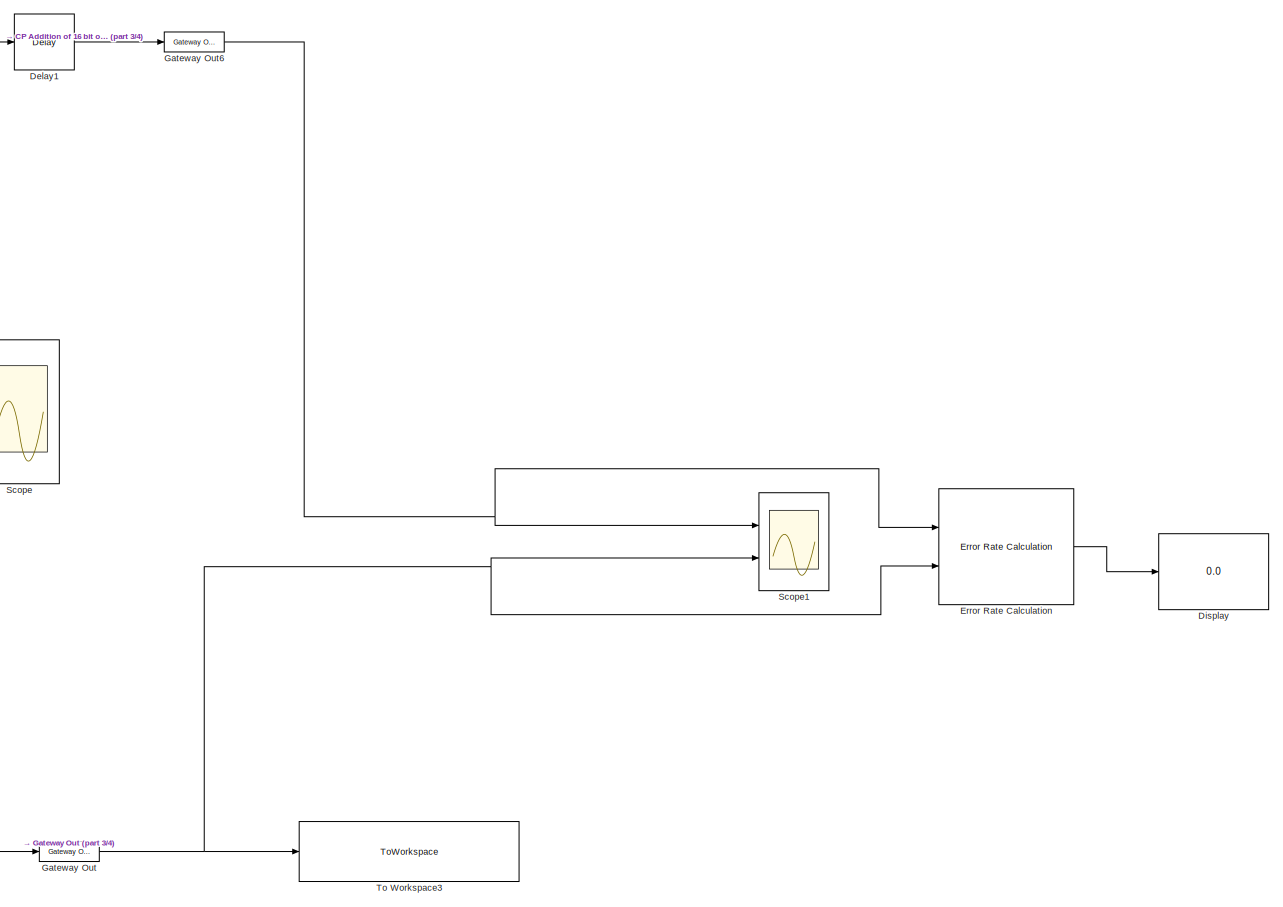
[diagram: root canvas - part 1/4, right side, full height]
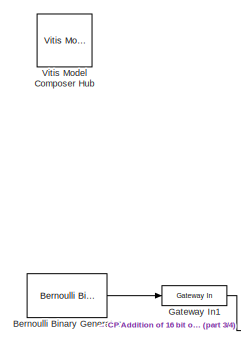
[diagram: root canvas - part 2/4, middle left region]
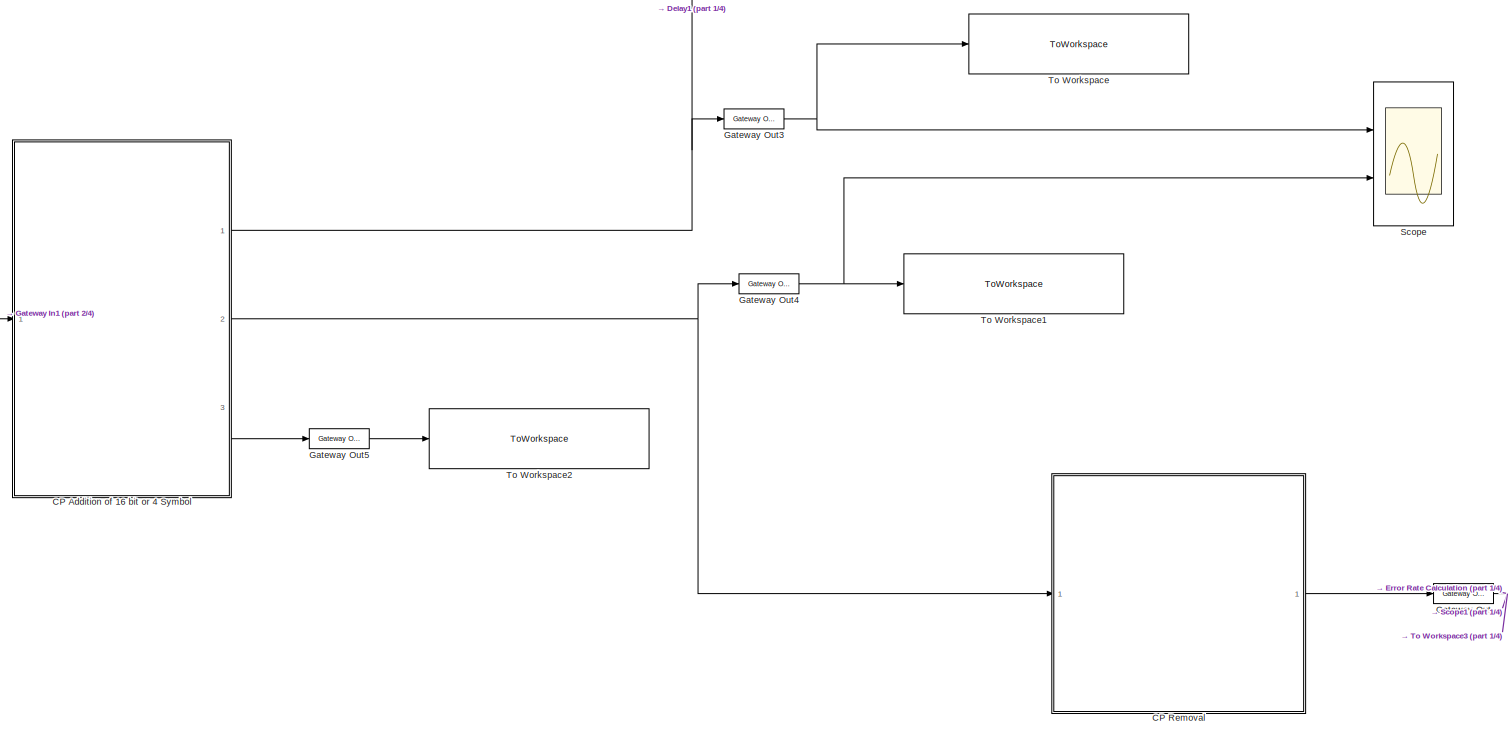
[diagram: root canvas - part 3/4, central region]
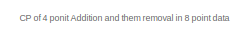
[diagram: root canvas - part 4/4, bottom center region]
MODEL slx_0018f669aeec
KIND model
CONFIG AbsTol = auto
CONFIG EnableMultiTasking = off
CONFIG FixedStep = auto
CONFIG MaxStep = auto
CONFIG MinStep = auto
CONFIG RelTol = 1e-3
CONFIG SampleTimeConstraint = Unconstrained
CONFIG SolverName = VariableStepAuto
CONFIG StartTime = 0.0
CONFIG StopTime = 5000
BLOCK [Reference] Bernoulli Binary Generator  REF=commrandsrc3/Bernoulli Binary
Generator
  Ports = [0, 1]
  SourceBlock = commrandsrc3/Bernoulli Binary\nGenerator
  SourceProductBaseCode = CM
  SourceType = Bernoulli Binary Generator
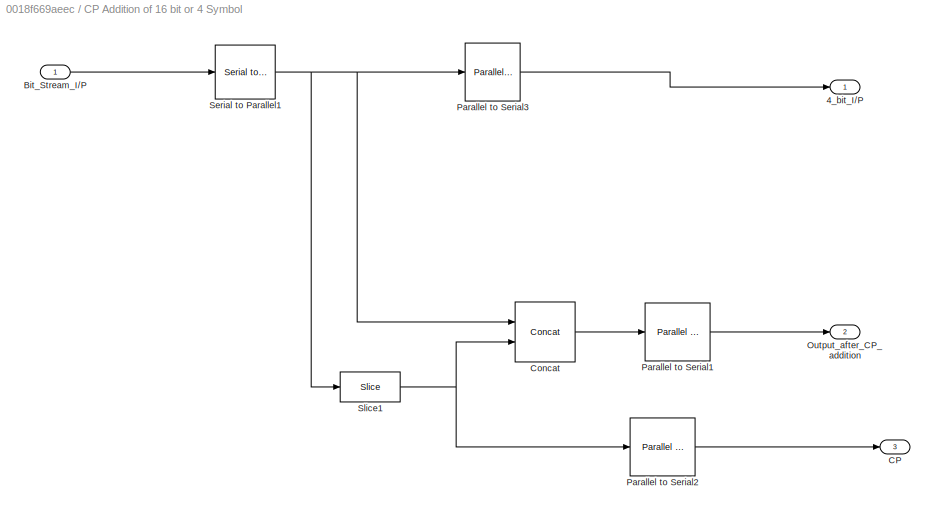
BLOCK [SubSystem] CP Addition of 16 bit or 4 Symbol
  Ports = [1, 3]
  RequestExecContextInheritance = off
BLOCK [Outport] CP Addition of 16 bit or 4 Symbol/4_bit_I//P
BLOCK [Inport] CP Addition of 16 bit or 4 Symbol/Bit_Stream_I//P
BLOCK [Outport] CP Addition of 16 bit or 4 Symbol/CP
  Port = 3
BLOCK [Reference] CP Addition of 16 bit or 4 Symbol/Concat  REF=hdlBasic/Concat
  Ports = [2, 1]
  SourceBlock = hdlBasic/Concat
  SourceType = Bus Concatenator Block
BLOCK [Outport] CP Addition of 16 bit or 4 Symbol/Output_after_CP_addition
  Port = 2
BLOCK [Reference] CP Addition of 16 bit or 4 Symbol/Parallel to Serial1  REF=hdlBasic/Parallel to Serial
  Ports = [1, 1]
  SourceBlock = hdlBasic/Parallel to Serial
  SourceType = Parallel to Serial Converter Block
BLOCK [Reference] CP Addition of 16 bit or 4 Symbol/Parallel to Serial2  REF=hdlBasic/Parallel to Serial
  Ports = [1, 1]
  SourceBlock = hdlBasic/Parallel to Serial
  SourceType = Parallel to Serial Converter Block
BLOCK [Reference] CP Addition of 16 bit or 4 Symbol/Parallel to Serial3  REF=hdlBasic/Parallel to Serial
  Ports = [1, 1]
  SourceBlock = hdlBasic/Parallel to Serial
  SourceType = Parallel to Serial Converter Block
BLOCK [Reference] CP Addition of 16 bit or 4 Symbol/Serial to Parallel1  REF=hdlBasic/Serial to Parallel
  Ports = [1, 1]
  SourceBlock = hdlBasic/Serial to Parallel
  SourceType = Serial to Parallel Converter Block
BLOCK [Reference] CP Addition of 16 bit or 4 Symbol/Slice1  REF=hdlBasic/Slice
  Ports = [1, 1]
  SourceBlock = hdlBasic/Slice
  SourceType = Bit Slice Extractor Block
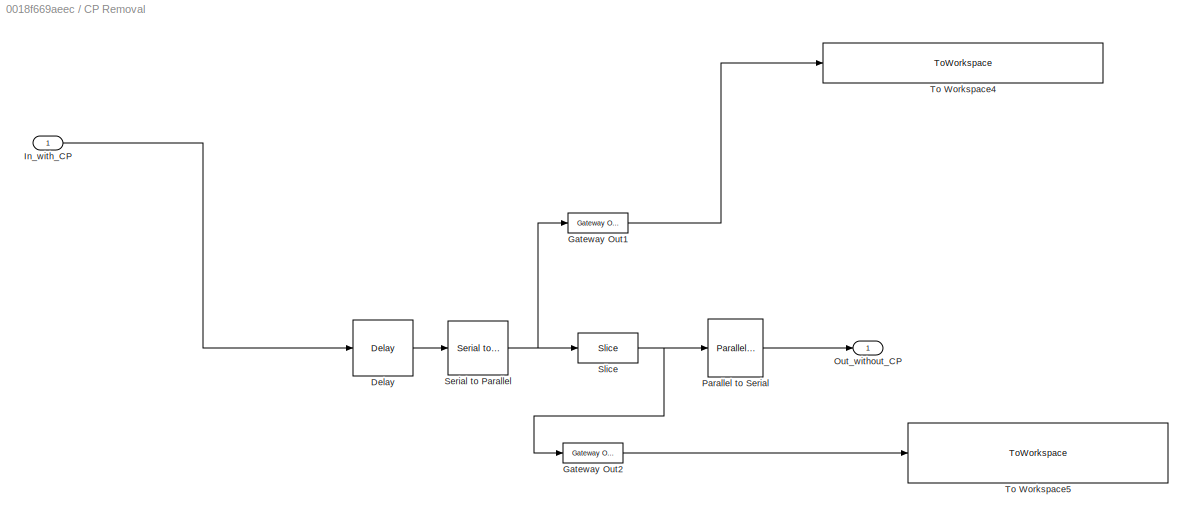
BLOCK [SubSystem] CP Removal
  Ports = [1, 1]
  RequestExecContextInheritance = off
BLOCK [Reference] CP Removal/Delay  REF=hdlBasic/Delay
  Ports = [1, 1]
  SourceBlock = hdlBasic/Delay
  SourceType = Delay Block
BLOCK [Reference] CP Removal/Gateway Out1  REF=hdlBasic/Gateway Out
  Ports = [1, 1]
  SourceBlock = hdlBasic/Gateway Out
  SourceType = Gateway Out Block
BLOCK [Reference] CP Removal/Gateway Out2  REF=hdlBasic/Gateway Out
  Ports = [1, 1]
  SourceBlock = hdlBasic/Gateway Out
  SourceType = Gateway Out Block
BLOCK [Inport] CP Removal/In_with_CP
BLOCK [Outport] CP Removal/Out_without_CP
BLOCK [Reference] CP Removal/Parallel to Serial  REF=hdlBasic/Parallel to Serial
  Ports = [1, 1]
  SourceBlock = hdlBasic/Parallel to Serial
  SourceType = Parallel to Serial Converter Block
BLOCK [Reference] CP Removal/Serial to Parallel  REF=hdlBasic/Serial to Parallel
  Ports = [1, 1]
  SourceBlock = hdlBasic/Serial to Parallel
  SourceType = Serial to Parallel Converter Block
BLOCK [Reference] CP Removal/Slice  REF=hdlBasic/Slice
  Ports = [1, 1]
  SourceBlock = hdlBasic/Slice
  SourceType = Bit Slice Extractor Block
BLOCK [ToWorkspace] CP Removal/To Workspace4
  FixptAsFi = on
  MaxDataPoints = inf
  Ports = [1]
  SampleTime = -1
  SaveFormat = Timeseries
  VariableName = Collecting_first_48_bit_after_addition_of_CP
BLOCK [ToWorkspace] CP Removal/To Workspace5
  FixptAsFi = on
  MaxDataPoints = inf
  Ports = [1]
  SampleTime = -1
  SaveFormat = Timeseries
  VariableName = First_32_bit_after_removal_CP
BLOCK [Reference] Delay1  REF=hdlBasic/Delay
  Ports = [1, 1]
  SourceBlock = hdlBasic/Delay
  SourceType = Delay Block
BLOCK [Display] Display
  Decimation = 1
  Ports = [1]
BLOCK [Reference] Error Rate Calculation  REF=commsink2/Error Rate
Calculation
  Ports = [2, 1]
  SourceBlock = commsink2/Error Rate\nCalculation
  SourceProductBaseCode = CM
  SourceType = Error Rate Calculation
BLOCK [Reference] Gateway In1  REF=hdlBasic/Gateway In
  Ports = [1, 1]
  SourceBlock = hdlBasic/Gateway In
  SourceType = Gateway In Block
BLOCK [Reference] Gateway Out  REF=hdlBasic/Gateway Out
  Ports = [1, 1]
  SourceBlock = hdlBasic/Gateway Out
  SourceType = Gateway Out Block
BLOCK [Reference] Gateway Out3  REF=hdlBasic/Gateway Out
  Ports = [1, 1]
  SourceBlock = hdlBasic/Gateway Out
  SourceType = Gateway Out Block
BLOCK [Reference] Gateway Out4  REF=hdlBasic/Gateway Out
  Ports = [1, 1]
  SourceBlock = hdlBasic/Gateway Out
  SourceType = Gateway Out Block
BLOCK [Reference] Gateway Out5  REF=hdlBasic/Gateway Out
  Ports = [1, 1]
  SourceBlock = hdlBasic/Gateway Out
  SourceType = Gateway Out Block
BLOCK [Reference] Gateway Out6  REF=hdlBasic/Gateway Out
  Ports = [1, 1]
  SourceBlock = hdlBasic/Gateway Out
  SourceType = Gateway Out Block
BLOCK [Scope] Scope
  Floating = off
  NumInputPorts = 2
  Ports = [2]
  ScopeSpecificationString = Simulink.scopes.TimeScopeBlockCfg('CurrentConfiguration', extmgr.ConfigurationSet(extmgr.Configuration('Core','General UI',true),extmgr.Configuration('Core','Source UI',true),extmgr.Configuration('Sources','WiredSimulink',true),extmgr.Configuration('Visuals','Time Domain',true,'SerializedDisplays',{struct('MinYLimReal','-1.875','MaxYLimReal','16.875','YLabelReal','','MinYLimMag','0.00000','MaxYLim...<+1989ch>
BLOCK [Scope] Scope1
  Floating = off
  NumInputPorts = 2
  Ports = [2]
  ScopeSpecificationString = Simulink.scopes.TimeScopeBlockCfg('CurrentConfiguration', extmgr.ConfigurationSet(extmgr.Configuration('Core','General UI',true),extmgr.Configuration('Core','Source UI',true),extmgr.Configuration('Sources','WiredSimulink',true,'DataLoggingVariableName','ScopeData1'),extmgr.Configuration('Visuals','Time Domain',true,'SerializedDisplays',{struct('MinYLimReal','-1.875','MaxYLimReal','16.875','YLabelR...<+2012ch>
BLOCK [ToWorkspace] To Workspace
  FixptAsFi = on
  MaxDataPoints = inf
  Ports = [1]
  SampleTime = -1
  SaveFormat = Timeseries
  VariableName = Input
BLOCK [ToWorkspace] To Workspace1
  FixptAsFi = on
  MaxDataPoints = inf
  Ports = [1]
  SampleTime = -1
  SaveFormat = Timeseries
  VariableName = Output_after_CP_addition
BLOCK [ToWorkspace] To Workspace2
  FixptAsFi = on
  MaxDataPoints = inf
  Ports = [1]
  SampleTime = -1
  SaveFormat = Timeseries
  VariableName = CP
BLOCK [ToWorkspace] To Workspace3
  FixptAsFi = on
  MaxDataPoints = inf
  Ports = [1]
  SampleTime = -1
  SaveFormat = Timeseries
  VariableName = Output_after_CP_removal
BLOCK [Reference] Vitis Model Composer Hub  REF=vmcUtilities/Vitis Model Composer Hub
  Ports = []
  SourceBlock = vmcUtilities/Vitis Model Composer Hub
  SourceType = Implementation
  Tag = genX
  UserDataPersistent = on
ANNOTATION (root): CP of 4 ponit Addition and them removal in 8 point data
LINE Bernoulli Binary Generator:1 -> Gateway In1:1
LINE CP Addition of 16 bit or 4 Symbol/Bit_Stream_I//P:1 -> CP Addition of 16 bit or 4 Symbol/Serial to Parallel1:1
LINE CP Addition of 16 bit or 4 Symbol/Concat:1 -> CP Addition of 16 bit or 4 Symbol/Parallel to Serial1:1
LINE CP Addition of 16 bit or 4 Symbol/Parallel to Serial1:1 -> CP Addition of 16 bit or 4 Symbol/Output_after_CP_addition:1
LINE CP Addition of 16 bit or 4 Symbol/Parallel to Serial2:1 -> CP Addition of 16 bit or 4 Symbol/CP:1
LINE CP Addition of 16 bit or 4 Symbol/Parallel to Serial3:1 -> CP Addition of 16 bit or 4 Symbol/4_bit_I//P:1
NET CP Addition of 16 bit or 4 Symbol/Serial to Parallel1:1 -> CP Addition of 16 bit or 4 Symbol/Concat:1, CP Addition of 16 bit or 4 Symbol/Parallel to Serial3:1, CP Addition of 16 bit or 4 Symbol/Slice1:1
NET CP Addition of 16 bit or 4 Symbol/Slice1:1 -> CP Addition of 16 bit or 4 Symbol/Concat:2, CP Addition of 16 bit or 4 Symbol/Parallel to Serial2:1
NET CP Addition of 16 bit or 4 Symbol:1 -> Delay1:1, Gateway Out3:1
NET CP Addition of 16 bit or 4 Symbol:2 -> CP Removal:1, Gateway Out4:1
LINE CP Addition of 16 bit or 4 Symbol:3 -> Gateway Out5:1
LINE CP Removal/Delay:1 -> CP Removal/Serial to Parallel:1
LINE CP Removal/Gateway Out1:1 -> CP Removal/To Workspace4:1
LINE CP Removal/Gateway Out2:1 -> CP Removal/To Workspace5:1
LINE CP Removal/In_with_CP:1 -> CP Removal/Delay:1
LINE CP Removal/Parallel to Serial:1 -> CP Removal/Out_without_CP:1
NET CP Removal/Serial to Parallel:1 -> CP Removal/Gateway Out1:1, CP Removal/Slice:1
NET CP Removal/Slice:1 -> CP Removal/Gateway Out2:1, CP Removal/Parallel to Serial:1
LINE CP Removal:1 -> Gateway Out:1
LINE Delay1:1 -> Gateway Out6:1
LINE Error Rate Calculation:1 -> Display:1
LINE Gateway In1:1 -> CP Addition of 16 bit or 4 Symbol:1
NET Gateway Out3:1 -> Scope:1, To Workspace:1
NET Gateway Out4:1 -> Scope:2, To Workspace1:1
LINE Gateway Out5:1 -> To Workspace2:1
NET Gateway Out6:1 -> Error Rate Calculation:1, Scope1:1
NET Gateway Out:1 -> Error Rate Calculation:2, Scope1:2, To Workspace3:1
note: NET lines group one-source signal fan-out (src -> all destinations, sorted); 1:1 wires keep LINE
